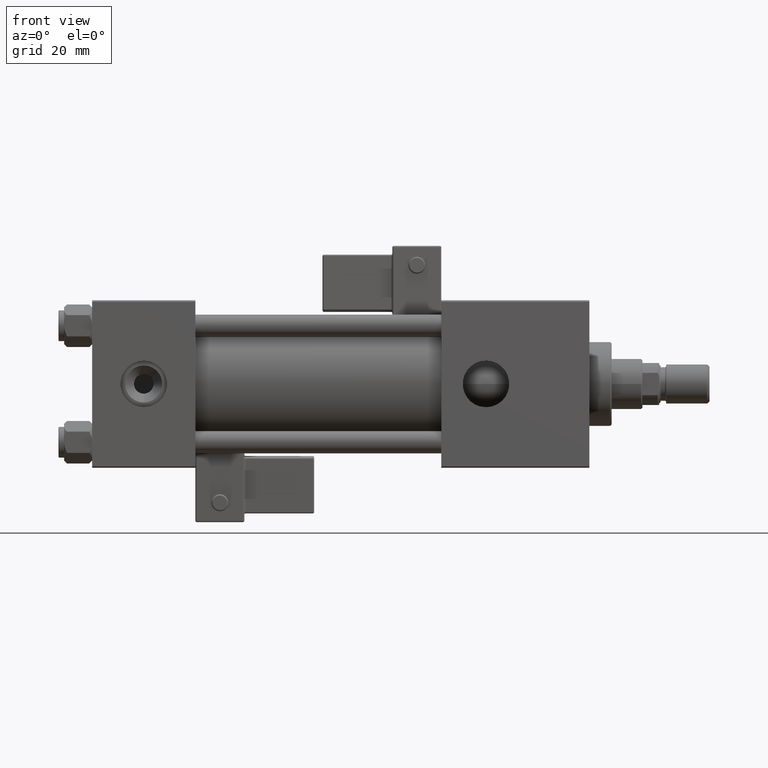
[diagram: clean part render]
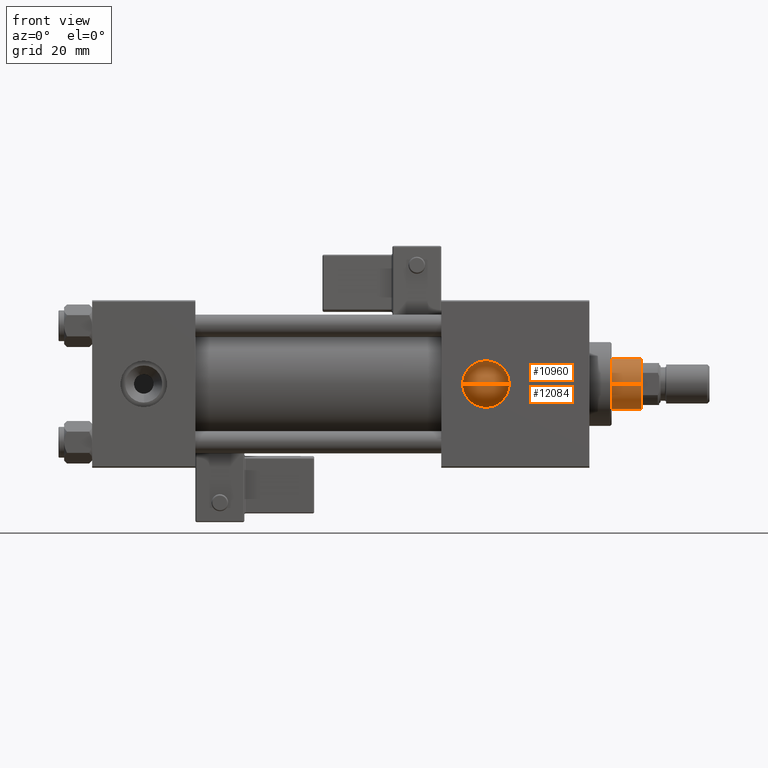
[diagram: same view with one multi-face feature highlighted, each face labeled with its STEP entity id]
A machine part, front view. The highlighted faces form ONE feature: a constant-radius fillet chain: 2 tangent blend faces with common blend radius 9 mm. The faces share edges in the B-rep.
Their STEP definitions:
[1] entity #12084 (Cylinder):
#111 = CARTESIAN_POINT ( 'NONE',  ( 0.000000000000000000, 0.000000000000000000, 160.0000000000000000 ) ) ;
#1139 = CARTESIAN_POINT ( 'NONE',  ( -9.000000000000000000, 0.000000000000000000, 159.5000000000000853 ) ) ;
#1915 = VERTEX_POINT ( 'NONE', #1139 ) ;
#2589 = DIRECTION ( 'NONE',  ( -0.000000000000000000, -0.000000000000000000, -1.000000000000000000 ) ) ;
#3466 = ORIENTED_EDGE ( 'NONE', *, *, #4909, .F. ) ;
#3578 = CARTESIAN_POINT ( 'NONE',  ( 0.000000000000000000, 0.000000000000000000, 159.5000000000000853 ) ) ;
#4909 = EDGE_CURVE ( 'NONE', #1915, #34174, #10919, .T. ) ;
#6266 = EDGE_CURVE ( 'NONE', #31489, #31525, #34392, .T. ) ;
#6752 = CARTESIAN_POINT ( 'NONE',  ( -9.000000000000000000, 0.000000000000000000, 160.0000000000000000 ) ) ;
#7927 = VECTOR ( 'NONE', #2589, 1000.000000000000000 ) ;
#9509 = CARTESIAN_POINT ( 'NONE',  ( -9.000000000000000000, 0.000000000000000000, 38.00000000000000000 ) ) ;
#10919 = LINE ( 'NONE', #6752, #7927 ) ;
#12084 = ADVANCED_FACE ( 'NONE', ( #38176 ), #54289, .T. ) ;
#12171 = DIRECTION ( 'NONE',  ( 1.000000000000000000, 0.000000000000000000, 0.000000000000000000 ) ) ;
#13752 = CIRCLE ( 'NONE', #45708, 9.000000000000000000 ) ;
#15267 = DIRECTION ( 'NONE',  ( 0.000000000000000000, 0.000000000000000000, -1.000000000000000000 ) ) ;
#15958 = DIRECTION ( 'NONE',  ( -1.000000000000000000, 0.000000000000000000, 0.000000000000000000 ) ) ;
#16661 = ORIENTED_EDGE ( 'NONE', *, *, #6266, .T. ) ;
#22754 = CIRCLE ( 'NONE', #44054, 9.000000000000000000 ) ;
#27727 = CARTESIAN_POINT ( 'NONE',  ( 9.000000000000000000, 1.102182119232617517E-15, 38.00000000000000000 ) ) ;
#27974 = CARTESIAN_POINT ( 'NONE',  ( 9.000000000000000000, 1.102182119232617517E-15, 160.0000000000000000 ) ) ;
#28596 = EDGE_CURVE ( 'NONE', #1915, #31489, #13752, .T. ) ;
#30207 = VECTOR ( 'NONE', #53249, 1000.000000000000000 ) ;
#31135 = EDGE_CURVE ( 'NONE', #31525, #34174, #22754, .T. ) ;
#31489 = VERTEX_POINT ( 'NONE', #47444 ) ;
#31525 = VERTEX_POINT ( 'NONE', #27727 ) ;
#32799 = ORIENTED_EDGE ( 'NONE', *, *, #31135, .T. ) ;
#34016 = DIRECTION ( 'NONE',  ( -0.000000000000000000, -0.000000000000000000, -1.000000000000000000 ) ) ;
#34174 = VERTEX_POINT ( 'NONE', #9509 ) ;
#34392 = LINE ( 'NONE', #27974, #30207 ) ;
#38176 = FACE_OUTER_BOUND ( 'NONE', #42460, .T. ) ;
#39185 = CARTESIAN_POINT ( 'NONE',  ( 0.000000000000000000, 0.000000000000000000, 38.00000000000000000 ) ) ;
#41750 = ORIENTED_EDGE ( 'NONE', *, *, #28596, .T. ) ;
#42460 = EDGE_LOOP ( 'NONE', ( #41750, #16661, #32799, #3466 ) ) ;
#43640 = DIRECTION ( 'NONE',  ( 1.000000000000000000, 0.000000000000000000, 0.000000000000000000 ) ) ;
#43906 = DIRECTION ( 'NONE',  ( 0.000000000000000000, 0.000000000000000000, 1.000000000000000000 ) ) ;
#44054 = AXIS2_PLACEMENT_3D ( 'NONE', #39185, #43906, #43640 ) ;
#45708 = AXIS2_PLACEMENT_3D ( 'NONE', #3578, #15267, #12171 ) ;
#46253 = AXIS2_PLACEMENT_3D ( 'NONE', #111, #34016, #15958 ) ;
#47444 = CARTESIAN_POINT ( 'NONE',  ( 9.000000000000000000, 1.102182119232617517E-15, 159.5000000000000853 ) ) ;
#53249 = DIRECTION ( 'NONE',  ( -0.000000000000000000, -0.000000000000000000, -1.000000000000000000 ) ) ;
#54289 = CYLINDRICAL_SURFACE ( 'NONE', #46253, 9.000000000000000000 ) ;
[2] entity #10960 (Cylinder):
#1139 = CARTESIAN_POINT ( 'NONE',  ( -9.000000000000000000, 0.000000000000000000, 159.5000000000000853 ) ) ;
#1804 = DIRECTION ( 'NONE',  ( -0.000000000000000000, -0.000000000000000000, -1.000000000000000000 ) ) ;
#1915 = VERTEX_POINT ( 'NONE', #1139 ) ;
#2589 = DIRECTION ( 'NONE',  ( -0.000000000000000000, -0.000000000000000000, -1.000000000000000000 ) ) ;
#3575 = DIRECTION ( 'NONE',  ( 0.000000000000000000, 0.000000000000000000, -1.000000000000000000 ) ) ;
#4909 = EDGE_CURVE ( 'NONE', #1915, #34174, #10919, .T. ) ;
#6266 = EDGE_CURVE ( 'NONE', #31489, #31525, #34392, .T. ) ;
#6752 = CARTESIAN_POINT ( 'NONE',  ( -9.000000000000000000, 0.000000000000000000, 160.0000000000000000 ) ) ;
#6947 = EDGE_CURVE ( 'NONE', #34174, #31525, #14219, .T. ) ;
#7054 = DIRECTION ( 'NONE',  ( -1.000000000000000000, 0.000000000000000000, 0.000000000000000000 ) ) ;
#7927 = VECTOR ( 'NONE', #2589, 1000.000000000000000 ) ;
#9509 = CARTESIAN_POINT ( 'NONE',  ( -9.000000000000000000, 0.000000000000000000, 38.00000000000000000 ) ) ;
#10919 = LINE ( 'NONE', #6752, #7927 ) ;
#10960 = ADVANCED_FACE ( 'NONE', ( #49328 ), #45167, .T. ) ;
#14219 = CIRCLE ( 'NONE', #48829, 9.000000000000000000 ) ;
#14383 = EDGE_CURVE ( 'NONE', #31489, #1915, #40144, .T. ) ;
#15726 = ORIENTED_EDGE ( 'NONE', *, *, #4909, .T. ) ;
#16026 = AXIS2_PLACEMENT_3D ( 'NONE', #35480, #1804, #7054 ) ;
#16080 = CARTESIAN_POINT ( 'NONE',  ( 0.000000000000000000, 0.000000000000000000, 159.5000000000000853 ) ) ;
#21936 = EDGE_LOOP ( 'NONE', ( #24549, #37412, #15726, #50783 ) ) ;
#22167 = CARTESIAN_POINT ( 'NONE',  ( 0.000000000000000000, 0.000000000000000000, 38.00000000000000000 ) ) ;
#24549 = ORIENTED_EDGE ( 'NONE', *, *, #6266, .F. ) ;
#27727 = CARTESIAN_POINT ( 'NONE',  ( 9.000000000000000000, 1.102182119232617517E-15, 38.00000000000000000 ) ) ;
#27974 = CARTESIAN_POINT ( 'NONE',  ( 9.000000000000000000, 1.102182119232617517E-15, 160.0000000000000000 ) ) ;
#29139 = DIRECTION ( 'NONE',  ( 1.000000000000000000, 0.000000000000000000, 0.000000000000000000 ) ) ;
#30207 = VECTOR ( 'NONE', #53249, 1000.000000000000000 ) ;
#31489 = VERTEX_POINT ( 'NONE', #47444 ) ;
#31525 = VERTEX_POINT ( 'NONE', #27727 ) ;
#34174 = VERTEX_POINT ( 'NONE', #9509 ) ;
#34392 = LINE ( 'NONE', #27974, #30207 ) ;
#35480 = CARTESIAN_POINT ( 'NONE',  ( 0.000000000000000000, 0.000000000000000000, 160.0000000000000000 ) ) ;
#37412 = ORIENTED_EDGE ( 'NONE', *, *, #14383, .T. ) ;
#38291 = DIRECTION ( 'NONE',  ( 0.000000000000000000, 0.000000000000000000, 1.000000000000000000 ) ) ;
#40144 = CIRCLE ( 'NONE', #43688, 9.000000000000000000 ) ;
#43688 = AXIS2_PLACEMENT_3D ( 'NONE', #16080, #3575, #29139 ) ;
#45167 = CYLINDRICAL_SURFACE ( 'NONE', #16026, 9.000000000000000000 ) ;
#46877 = DIRECTION ( 'NONE',  ( 1.000000000000000000, 0.000000000000000000, 0.000000000000000000 ) ) ;
#47444 = CARTESIAN_POINT ( 'NONE',  ( 9.000000000000000000, 1.102182119232617517E-15, 159.5000000000000853 ) ) ;
#48829 = AXIS2_PLACEMENT_3D ( 'NONE', #22167, #38291, #46877 ) ;
#49328 = FACE_OUTER_BOUND ( 'NONE', #21936, .T. ) ;
#50783 = ORIENTED_EDGE ( 'NONE', *, *, #6947, .T. ) ;
#53249 = DIRECTION ( 'NONE',  ( -0.000000000000000000, -0.000000000000000000, -1.000000000000000000 ) ) ;